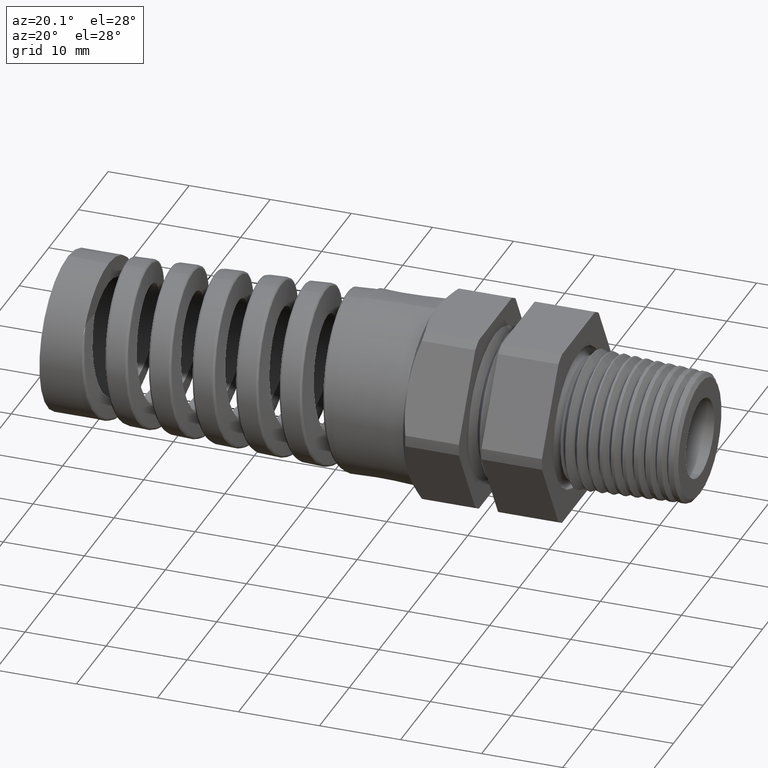
[diagram: clean part render]
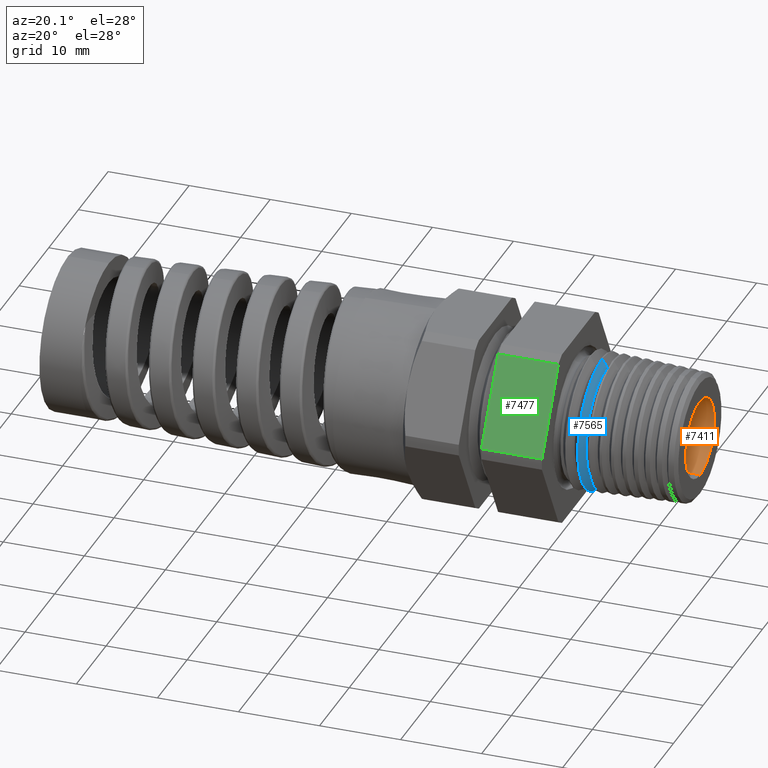
[diagram: same view with three faces highlighted in distinct colors, each labeled with its STEP entity id]
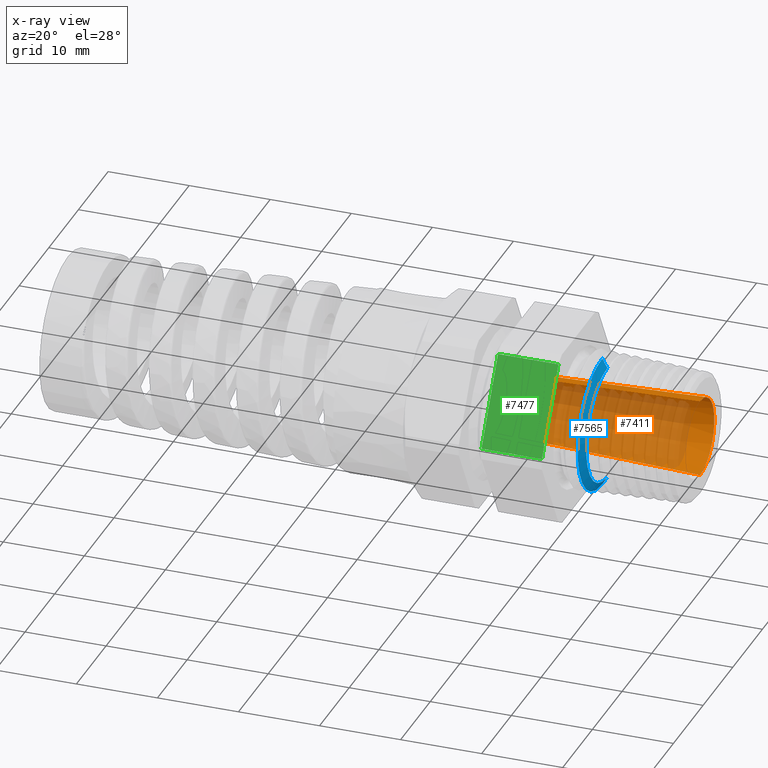
[diagram: x-ray of the same camera — body ghosted, the three highlighted faces saturated]
A machine part, auxiliary view with three faces highlighted in distinct colors.
The next image is the same camera in x-ray (body ghosted, the three faces saturated) — at least one of them is partly hidden behind the body in this view.
Their STEP definitions:

[orange] entity #7411 — the highlighted conical surface has half-angle 2 deg.
#252 = EDGE_CURVE ( 'NONE', #7181, #7184, #8556, .T. ) ;
#7005 = CARTESIAN_POINT ( 'NONE',  ( -0.4037499999999999400, 0.0000000000000000000, -0.1550000000000000000 ) ) ;
#7007 = LINE ( 'NONE', #7005, #8445 ) ;
#7116 = VERTEX_POINT ( 'NONE', #8819 ) ;
#7117 = VERTEX_POINT ( 'NONE', #8818 ) ;
#7180 = EDGE_CURVE ( 'NONE', #7117, #7181, #8960, .T. ) ;
#7181 = VERTEX_POINT ( 'NONE', #8951 ) ;
#7184 = VERTEX_POINT ( 'NONE', #8945 ) ;
#7186 = EDGE_CURVE ( 'NONE', #7116, #7184, #7007, .T. ) ;
#7411 = ADVANCED_FACE ( 'NONE', ( #9403 ), #9402, .F. ) ;
#7412 = EDGE_LOOP ( 'NONE', ( #7413, #7414, #7416, #7417 ) ) ;
#7413 = ORIENTED_EDGE ( 'NONE', *, *, #7180, .F. ) ;
#7414 = ORIENTED_EDGE ( 'NONE', *, *, #7415, .T. ) ;
#7415 = EDGE_CURVE ( 'NONE', #7117, #7116, #9396, .T. ) ;
#7416 = ORIENTED_EDGE ( 'NONE', *, *, #7186, .T. ) ;
#7417 = ORIENTED_EDGE ( 'NONE', *, *, #252, .F. ) ;
#8440 = DIRECTION ( 'NONE',  ( 0.9993908270190957600, 0.0000000000000000000, -0.03489949670250170500 ) ) ;
#8445 = VECTOR ( 'NONE', #8440, 39.37007874015748900 ) ;
#8552 = DIRECTION ( 'NONE',  ( 0.0000000000000000000, 0.0000000000000000000, 1.000000000000000000 ) ) ;
#8553 = DIRECTION ( 'NONE',  ( -1.000000000000000000, 0.0000000000000000000, 0.0000000000000000000 ) ) ;
#8554 = CARTESIAN_POINT ( 'NONE',  ( 0.5899999999999999700, 0.0000000000000000000, 0.0000000000000000000 ) ) ;
#8555 = AXIS2_PLACEMENT_3D ( 'NONE', #8554, #8553, #8552 ) ;
#8556 = CIRCLE ( 'NONE', #8555, 0.1897025146824250200 ) ;
#8818 = CARTESIAN_POINT ( 'NONE',  ( -0.4037499999999999400, 2.110694156319376800E-017, 0.1550000000000000000 ) ) ;
#8819 = CARTESIAN_POINT ( 'NONE',  ( -0.4037499999999999400, 0.0000000000000000000, -0.1550000000000000000 ) ) ;
#8945 = CARTESIAN_POINT ( 'NONE',  ( 0.5899999999999999700, 0.0000000000000000000, -0.1897025146824250200 ) ) ;
#8951 = CARTESIAN_POINT ( 'NONE',  ( 0.5899999999999999700, 2.323185773960356000E-017, 0.1897025146824250200 ) ) ;
#8952 = DIRECTION ( 'NONE',  ( 0.9993908270190957600, 4.273955692857231900E-018, 0.03489949670250170500 ) ) ;
#8953 = VECTOR ( 'NONE', #8952, 39.37007874015748900 ) ;
#8954 = CARTESIAN_POINT ( 'NONE',  ( -0.4037499999999999400, 1.898202538678397300E-017, 0.1550000000000000000 ) ) ;
#8960 = LINE ( 'NONE', #8954, #8953 ) ;
#9394 = DIRECTION ( 'NONE',  ( -1.000000000000000000, 0.0000000000000000000, 0.0000000000000000000 ) ) ;
#9395 = AXIS2_PLACEMENT_3D ( 'NONE', #9401, #9394, #9458 ) ;
#9396 = CIRCLE ( 'NONE', #9395, 0.1550000000000000000 ) ;
#9397 = DIRECTION ( 'NONE',  ( 0.0000000000000000000, 0.0000000000000000000, -1.000000000000000000 ) ) ;
#9398 = DIRECTION ( 'NONE',  ( 1.000000000000000000, 0.0000000000000000000, 0.0000000000000000000 ) ) ;
#9399 = CARTESIAN_POINT ( 'NONE',  ( -0.4037499999999999400, 0.0000000000000000000, 0.0000000000000000000 ) ) ;
#9400 = AXIS2_PLACEMENT_3D ( 'NONE', #9399, #9398, #9397 ) ;
#9401 = CARTESIAN_POINT ( 'NONE',  ( -0.4037499999999999400, 0.0000000000000000000, 0.0000000000000000000 ) ) ;
#9402 = CONICAL_SURFACE ( 'NONE', #9400, 0.1550000000000000000, 0.03490658503988732600 ) ;
#9403 = FACE_OUTER_BOUND ( 'NONE', #7412, .T. ) ;
#9458 = DIRECTION ( 'NONE',  ( 0.0000000000000000000, 0.0000000000000000000, 1.000000000000000000 ) ) ;

[blue] entity #7565 — the highlighted conical surface has half-angle 60 deg.
#6698 = CARTESIAN_POINT ( 'NONE',  ( 0.1402379998258641300, 3.711132126558395000E-017, -0.2810903495974814100 ) ) ;
#6709 = CARTESIAN_POINT ( 'NONE',  ( 0.1148962656718722400, 3.981286690388741000E-017, -0.3249835207040993000 ) ) ;
#6710 = DIRECTION ( 'NONE',  ( -0.4999999999999973900, 1.060575238724908600E-016, -0.8660254037844402600 ) ) ;
#6711 = VECTOR ( 'NONE', #6710, 39.37007874015748100 ) ;
#6712 = CARTESIAN_POINT ( 'NONE',  ( 0.1119999999999997400, 4.041334437186265900E-017, -0.3300000000000000200 ) ) ;
#6713 = LINE ( 'NONE', #6712, #6711 ) ;
#6718 = CARTESIAN_POINT ( 'NONE',  ( 0.1402379998258641300, 0.0000000000000000000, 0.2810903495974814100 ) ) ;
#6784 = DIRECTION ( 'NONE',  ( 0.0000000000000000000, 0.0000000000000000000, 1.000000000000000000 ) ) ;
#6785 = DIRECTION ( 'NONE',  ( 1.000000000000000000, 0.0000000000000000000, 0.0000000000000000000 ) ) ;
#6786 = CARTESIAN_POINT ( 'NONE',  ( 0.1148962656718722400, 0.0000000000000000000, 0.0000000000000000000 ) ) ;
#6787 = AXIS2_PLACEMENT_3D ( 'NONE', #6786, #6785, #6784 ) ;
#6788 = CIRCLE ( 'NONE', #6787, 0.3249835207040993000 ) ;
#7072 = VERTEX_POINT ( 'NONE', #8780 ) ;
#7148 = EDGE_CURVE ( 'NONE', #8419, #7072, #8887, .T. ) ;
#7565 = ADVANCED_FACE ( 'NONE', ( #9648 ), #9643, .T. ) ;
#7566 = ORIENTED_EDGE ( 'NONE', *, *, #8425, .F. ) ;
#7567 = ORIENTED_EDGE ( 'NONE', *, *, #7568, .T. ) ;
#7568 = EDGE_CURVE ( 'NONE', #8432, #8419, #9637, .T. ) ;
#7569 = ORIENTED_EDGE ( 'NONE', *, *, #7148, .T. ) ;
#7570 = ORIENTED_EDGE ( 'NONE', *, *, #11107, .T. ) ;
#7586 = EDGE_LOOP ( 'NONE', ( #7566, #7567, #7569, #7570 ) ) ;
#8419 = VERTEX_POINT ( 'NONE', #6718 ) ;
#8425 = EDGE_CURVE ( 'NONE', #8432, #8426, #6713, .T. ) ;
#8426 = VERTEX_POINT ( 'NONE', #6709 ) ;
#8432 = VERTEX_POINT ( 'NONE', #6698 ) ;
#8780 = CARTESIAN_POINT ( 'NONE',  ( 0.1148962656718722400, 0.0000000000000000000, 0.3249835207040993000 ) ) ;
#8884 = DIRECTION ( 'NONE',  ( -0.4999999999999973900, 0.0000000000000000000, 0.8660254037844402600 ) ) ;
#8885 = VECTOR ( 'NONE', #8884, 39.37007874015748100 ) ;
#8886 = CARTESIAN_POINT ( 'NONE',  ( 0.1119999999999997400, 0.0000000000000000000, 0.3300000000000000200 ) ) ;
#8887 = LINE ( 'NONE', #8886, #8885 ) ;
#9634 = DIRECTION ( 'NONE',  ( 0.0000000000000000000, 0.0000000000000000000, 1.000000000000000000 ) ) ;
#9635 = DIRECTION ( 'NONE',  ( -1.000000000000000000, 0.0000000000000000000, 0.0000000000000000000 ) ) ;
#9636 = AXIS2_PLACEMENT_3D ( 'NONE', #9642, #9635, #9634 ) ;
#9637 = CIRCLE ( 'NONE', #9636, 0.2810903495974814100 ) ;
#9638 = DIRECTION ( 'NONE',  ( 0.0000000000000000000, 0.0000000000000000000, 1.000000000000000000 ) ) ;
#9639 = DIRECTION ( 'NONE',  ( -1.000000000000000000, 0.0000000000000000000, 0.0000000000000000000 ) ) ;
#9640 = CARTESIAN_POINT ( 'NONE',  ( 0.1119999999999997400, 0.0000000000000000000, 0.0000000000000000000 ) ) ;
#9641 = AXIS2_PLACEMENT_3D ( 'NONE', #9640, #9639, #9638 ) ;
#9642 = CARTESIAN_POINT ( 'NONE',  ( 0.1402379998258641300, 0.0000000000000000000, 0.0000000000000000000 ) ) ;
#9643 = CONICAL_SURFACE ( 'NONE', #9641, 0.3300000000000000200, 1.047197551196600700 ) ;
#9648 = FACE_OUTER_BOUND ( 'NONE', #7586, .T. ) ;
#11107 = EDGE_CURVE ( 'NONE', #7072, #8426, #6788, .T. ) ;

[green] entity #7477 — the highlighted planar face has unit normal (0, -0.866, 0.5).
#209 = EDGE_CURVE ( 'NONE', #230, #217, #8490, .T. ) ;
#217 = VERTEX_POINT ( 'NONE', #8479 ) ;
#230 = VERTEX_POINT ( 'NONE', #8516 ) ;
#7320 = EDGE_CURVE ( 'NONE', #7349, #7347, #9277, .T. ) ;
#7347 = VERTEX_POINT ( 'NONE', #9357 ) ;
#7349 = VERTEX_POINT ( 'NONE', #9356 ) ;
#7383 = EDGE_CURVE ( 'NONE', #7347, #217, #9385, .T. ) ;
#7403 = EDGE_LOOP ( 'NONE', ( #7404, #7405, #7406, #7407 ) ) ;
#7404 = ORIENTED_EDGE ( 'NONE', *, *, #7320, .T. ) ;
#7405 = ORIENTED_EDGE ( 'NONE', *, *, #7383, .T. ) ;
#7406 = ORIENTED_EDGE ( 'NONE', *, *, #209, .F. ) ;
#7407 = ORIENTED_EDGE ( 'NONE', *, *, #7427, .F. ) ;
#7427 = EDGE_CURVE ( 'NONE', #7349, #230, #9441, .T. ) ;
#7477 = ADVANCED_FACE ( 'NONE', ( #9509 ), #9508, .T. ) ;
#8479 = CARTESIAN_POINT ( 'NONE',  ( 0.0000000000000000000, -0.4864238764986216800, 0.02748913188977849700 ) ) ;
#8487 = DIRECTION ( 'NONE',  ( 0.0000000000000000000, -0.5000000000000001100, -0.8660254037844386000 ) ) ;
#8488 = VECTOR ( 'NONE', #8487, 39.37007874015748900 ) ;
#8489 = CARTESIAN_POINT ( 'NONE',  ( 0.0000000000000000000, -0.2670182247938399100, 0.4075108681102214700 ) ) ;
#8490 = LINE ( 'NONE', #8489, #8488 ) ;
#8516 = CARTESIAN_POINT ( 'NONE',  ( 0.0000000000000000000, -0.2670182247938398000, 0.4075108681102215200 ) ) ;
#9274 = DIRECTION ( 'NONE',  ( 0.0000000000000000000, -0.5000000000000001100, -0.8660254037844384900 ) ) ;
#9275 = VECTOR ( 'NONE', #9274, 39.37007874015748900 ) ;
#9276 = CARTESIAN_POINT ( 'NONE',  ( -0.2935323383084577100, -0.2866210506462308300, 0.3735577777619560300 ) ) ;
#9277 = LINE ( 'NONE', #9276, #9275 ) ;
#9356 = CARTESIAN_POINT ( 'NONE',  ( -0.2935323383084577100, -0.2670182247938398000, 0.4075108681102215200 ) ) ;
#9357 = CARTESIAN_POINT ( 'NONE',  ( -0.2935323383084577100, -0.4864238764986216800, 0.02748913188977850100 ) ) ;
#9382 = DIRECTION ( 'NONE',  ( 1.000000000000000000, 0.0000000000000000000, 0.0000000000000000000 ) ) ;
#9383 = VECTOR ( 'NONE', #9382, 39.37007874015748100 ) ;
#9384 = CARTESIAN_POINT ( 'NONE',  ( -2.085539792128106900, -0.4864238764986216800, 0.02748913188977850100 ) ) ;
#9385 = LINE ( 'NONE', #9384, #9383 ) ;
#9438 = DIRECTION ( 'NONE',  ( 1.000000000000000000, 0.0000000000000000000, 0.0000000000000000000 ) ) ;
#9439 = VECTOR ( 'NONE', #9438, 39.37007874015748100 ) ;
#9440 = CARTESIAN_POINT ( 'NONE',  ( -2.085539792128106900, -0.2670182247938398000, 0.4075108681102215200 ) ) ;
#9441 = LINE ( 'NONE', #9440, #9439 ) ;
#9504 = DIRECTION ( 'NONE',  ( 0.0000000000000000000, -0.5000000000000001100, -0.8660254037844384900 ) ) ;
#9505 = DIRECTION ( 'NONE',  ( 0.0000000000000000000, -0.8660254037844386000, 0.5000000000000002200 ) ) ;
#9506 = CARTESIAN_POINT ( 'NONE',  ( -2.085539792128106900, -0.2670182247938399100, 0.4075108681102214700 ) ) ;
#9507 = AXIS2_PLACEMENT_3D ( 'NONE', #9506, #9505, #9504 ) ;
#9508 = PLANE ( 'NONE',  #9507 ) ;
#9509 = FACE_OUTER_BOUND ( 'NONE', #7403, .T. ) ;